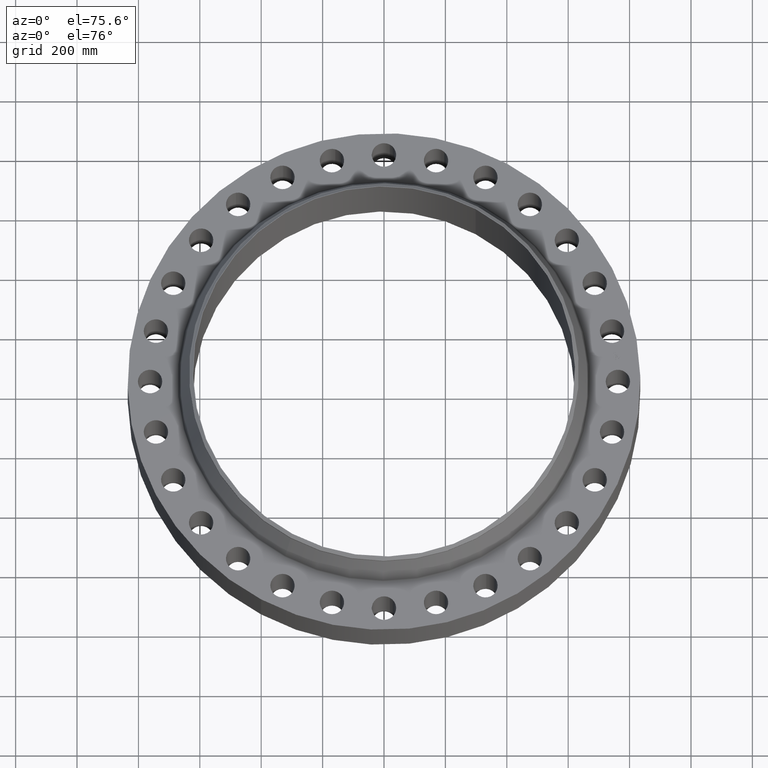
[diagram: clean part render]
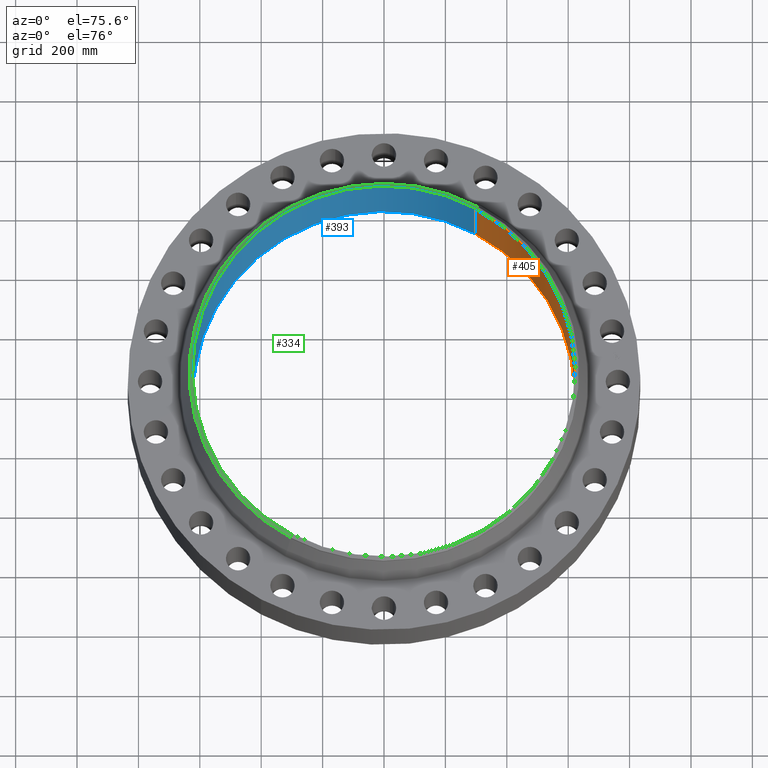
[diagram: same view with three faces highlighted in distinct colors, each labeled with its STEP entity id]
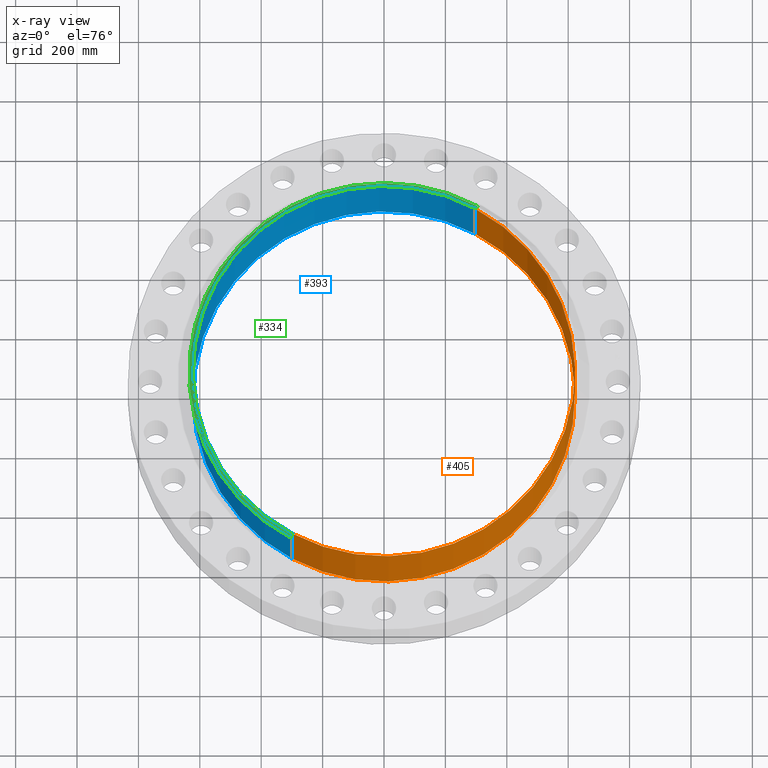
[diagram: x-ray of the same camera — body ghosted, the three highlighted faces saturated]
A machine part, auxiliary view with three faces highlighted in distinct colors.
The next image is the same camera in x-ray (body ghosted, the three faces saturated) — at least one of them is partly hidden behind the body in this view.
Their STEP definitions:

[orange] entity #405 — the highlighted cylindrical surface (partial cylindrical patch) has radius 622.3 mm, axis along (0, 0, -1).
#355=AXIS2_PLACEMENT_3D('Circle Axis2P3D',#353,#354,$) ;
#366=AXIS2_PLACEMENT_3D('Cylinder Axis2P3D',#363,#364,#365) ;
#396=AXIS2_PLACEMENT_3D('Circle Axis2P3D',#394,#395,$) ;
#348=CARTESIAN_POINT('Vertex',(-11.7459256958,-21.5007727664,12.9400000001)) ;
#350=CARTESIAN_POINT('Vertex',(11.7459256958,21.5007727664,12.9400000001)) ;
#353=CARTESIAN_POINT('Axis2P3D Location',(-8.95171950564E-015,-5.59482469102E-016,12.9400000001)) ;
#363=CARTESIAN_POINT('Axis2P3D Location',(0.,0.,6.52000000003)) ;
#368=CARTESIAN_POINT('Line Origine',(-11.7459256958,-21.5007727664,6.47000000003)) ;
#372=CARTESIAN_POINT('Vertex',(-11.7459256958,-21.5007727664,-8.05654755508E-014)) ;
#379=CARTESIAN_POINT('Vertex',(11.7459256958,21.5007727664,-8.05654755508E-014)) ;
#382=CARTESIAN_POINT('Line Origine',(11.7459256958,21.5007727664,6.47000000003)) ;
#394=CARTESIAN_POINT('Axis2P3D Location',(0.,0.,-8.28034054272E-014)) ;
#354=DIRECTION('Axis2P3D Direction',(0.,-0.,-0.0393700787402)) ;
#364=DIRECTION('Axis2P3D Direction',(0.,0.,-0.0393700787402)) ;
#365=DIRECTION('Axis2P3D XDirection',(0.0188750212049,0.0345504945626,0.)) ;
#369=DIRECTION('Vector Direction',(0.,0.,-0.0393700787402)) ;
#383=DIRECTION('Vector Direction',(0.,0.,-0.0393700787402)) ;
#395=DIRECTION('Axis2P3D Direction',(0.,0.,-0.0393700787402)) ;
#370=VECTOR('Line Direction',#369,0.0393700787402) ;
#384=VECTOR('Line Direction',#383,0.0393700787402) ;
#400=ORIENTED_EDGE('',*,*,#386,.T.) ;
#401=ORIENTED_EDGE('',*,*,#398,.T.) ;
#402=ORIENTED_EDGE('',*,*,#374,.F.) ;
#403=ORIENTED_EDGE('',*,*,#357,.F.) ;
#405=ADVANCED_FACE('PartBody',(#404),#367,.F.) ;
#356=CIRCLE('generated circle',#355,24.5000000001) ;
#397=CIRCLE('generated circle',#396,24.5000000001) ;
#367=CYLINDRICAL_SURFACE('generated cylinder',#366,24.5000000001) ;
#357=EDGE_CURVE('',#351,#349,#356,.T.) ;
#374=EDGE_CURVE('',#349,#373,#371,.T.) ;
#386=EDGE_CURVE('',#351,#380,#385,.T.) ;
#398=EDGE_CURVE('',#380,#373,#397,.T.) ;
#399=EDGE_LOOP('',(#400,#401,#402,#403)) ;
#404=FACE_OUTER_BOUND('',#399,.T.) ;
#371=LINE('Line',#368,#370) ;
#385=LINE('Line',#382,#384) ;
#349=VERTEX_POINT('',#348) ;
#351=VERTEX_POINT('',#350) ;
#373=VERTEX_POINT('',#372) ;
#380=VERTEX_POINT('',#379) ;

[blue] entity #393 — the highlighted cylindrical surface (partial cylindrical patch) has radius 622.3 mm, axis along (0, 0, -1).
#346=AXIS2_PLACEMENT_3D('Circle Axis2P3D',#344,#345,$) ;
#366=AXIS2_PLACEMENT_3D('Cylinder Axis2P3D',#363,#364,#365) ;
#377=AXIS2_PLACEMENT_3D('Circle Axis2P3D',#375,#376,$) ;
#344=CARTESIAN_POINT('Axis2P3D Location',(4.47585975282E-015,1.1189649382E-015,12.9400000001)) ;
#348=CARTESIAN_POINT('Vertex',(-11.7459256958,-21.5007727664,12.9400000001)) ;
#350=CARTESIAN_POINT('Vertex',(11.7459256958,21.5007727664,12.9400000001)) ;
#363=CARTESIAN_POINT('Axis2P3D Location',(0.,0.,6.52000000003)) ;
#368=CARTESIAN_POINT('Line Origine',(-11.7459256958,-21.5007727664,6.47000000003)) ;
#372=CARTESIAN_POINT('Vertex',(-11.7459256958,-21.5007727664,-8.05654755508E-014)) ;
#375=CARTESIAN_POINT('Axis2P3D Location',(0.,0.,-8.28034054272E-014)) ;
#379=CARTESIAN_POINT('Vertex',(11.7459256958,21.5007727664,-8.05654755508E-014)) ;
#382=CARTESIAN_POINT('Line Origine',(11.7459256958,21.5007727664,6.47000000003)) ;
#345=DIRECTION('Axis2P3D Direction',(0.,-0.,-0.0393700787402)) ;
#364=DIRECTION('Axis2P3D Direction',(0.,0.,-0.0393700787402)) ;
#365=DIRECTION('Axis2P3D XDirection',(0.0188750212049,0.0345504945626,0.)) ;
#369=DIRECTION('Vector Direction',(0.,0.,-0.0393700787402)) ;
#376=DIRECTION('Axis2P3D Direction',(0.,0.,-0.0393700787402)) ;
#383=DIRECTION('Vector Direction',(0.,0.,-0.0393700787402)) ;
#370=VECTOR('Line Direction',#369,0.0393700787402) ;
#384=VECTOR('Line Direction',#383,0.0393700787402) ;
#388=ORIENTED_EDGE('',*,*,#374,.T.) ;
#389=ORIENTED_EDGE('',*,*,#381,.T.) ;
#390=ORIENTED_EDGE('',*,*,#386,.F.) ;
#391=ORIENTED_EDGE('',*,*,#352,.F.) ;
#393=ADVANCED_FACE('PartBody',(#392),#367,.F.) ;
#347=CIRCLE('generated circle',#346,24.5000000001) ;
#378=CIRCLE('generated circle',#377,24.5000000001) ;
#367=CYLINDRICAL_SURFACE('generated cylinder',#366,24.5000000001) ;
#352=EDGE_CURVE('',#349,#351,#347,.T.) ;
#374=EDGE_CURVE('',#349,#373,#371,.T.) ;
#381=EDGE_CURVE('',#373,#380,#378,.T.) ;
#386=EDGE_CURVE('',#351,#380,#385,.T.) ;
#387=EDGE_LOOP('',(#388,#389,#390,#391)) ;
#392=FACE_OUTER_BOUND('',#387,.T.) ;
#371=LINE('Line',#368,#370) ;
#385=LINE('Line',#382,#384) ;
#349=VERTEX_POINT('',#348) ;
#351=VERTEX_POINT('',#350) ;
#373=VERTEX_POINT('',#372) ;
#380=VERTEX_POINT('',#379) ;

[green] entity #334 — the highlighted conical surface has half-angle 52.5 deg.
#282=AXIS2_PLACEMENT_3D('Circle Axis2P3D',#280,#281,$) ;
#295=AXIS2_PLACEMENT_3D('Cone Axis2P3D',#292,#293,#294) ;
#325=AXIS2_PLACEMENT_3D('Circle Axis2P3D',#323,#324,$) ;
#258=CARTESIAN_POINT('Vertex',(-11.9856384652,-21.9395640473,12.6042944428)) ;
#265=CARTESIAN_POINT('Vertex',(11.9856384652,21.9395640473,12.6042944428)) ;
#280=CARTESIAN_POINT('Axis2P3D Location',(0.,0.,12.6042944428)) ;
#292=CARTESIAN_POINT('Axis2P3D Location',(0.,0.,12.9400000001)) ;
#297=CARTESIAN_POINT('Line Origine',(11.8807641286,21.7475928619,12.7721472214)) ;
#301=CARTESIAN_POINT('Vertex',(11.775889792,21.5556216765,12.9400000001)) ;
#308=CARTESIAN_POINT('Vertex',(-11.775889792,-21.5556216765,12.9400000001)) ;
#311=CARTESIAN_POINT('Line Origine',(-11.8807641286,-21.7475928619,12.7721472214)) ;
#323=CARTESIAN_POINT('Axis2P3D Location',(0.,0.,12.9400000001)) ;
#281=DIRECTION('Axis2P3D Direction',(0.,0.,-0.0393700787402)) ;
#293=DIRECTION('Axis2P3D Direction',(-0.,-0.,-0.0393700787402)) ;
#294=DIRECTION('Axis2P3D XDirection',(-0.0188750212049,-0.0345504945626,0.)) ;
#298=DIRECTION('Vector Direction',(0.014974561121,0.02741075027,-0.023966985394)) ;
#312=DIRECTION('Vector Direction',(-0.014974561121,-0.02741075027,-0.023966985394)) ;
#324=DIRECTION('Axis2P3D Direction',(0.,-0.,-0.0393700787402)) ;
#299=VECTOR('Line Direction',#298,0.0393700787402) ;
#313=VECTOR('Line Direction',#312,0.0393700787402) ;
#329=ORIENTED_EDGE('',*,*,#315,.F.) ;
#330=ORIENTED_EDGE('',*,*,#327,.T.) ;
#331=ORIENTED_EDGE('',*,*,#303,.T.) ;
#332=ORIENTED_EDGE('',*,*,#284,.F.) ;
#334=ADVANCED_FACE('PartBody',(#333),#296,.T.) ;
#283=CIRCLE('generated circle',#282,25.0000000001) ;
#326=CIRCLE('generated circle',#325,24.5625000001) ;
#296=CONICAL_SURFACE('Cone',#295,24.5625000001,0.916297857297) ;
#284=EDGE_CURVE('',#259,#266,#283,.T.) ;
#303=EDGE_CURVE('',#302,#266,#300,.T.) ;
#315=EDGE_CURVE('',#309,#259,#314,.T.) ;
#327=EDGE_CURVE('',#309,#302,#326,.T.) ;
#328=EDGE_LOOP('',(#329,#330,#331,#332)) ;
#333=FACE_OUTER_BOUND('',#328,.T.) ;
#300=LINE('Line',#297,#299) ;
#314=LINE('Line',#311,#313) ;
#259=VERTEX_POINT('',#258) ;
#266=VERTEX_POINT('',#265) ;
#302=VERTEX_POINT('',#301) ;
#309=VERTEX_POINT('',#308) ;